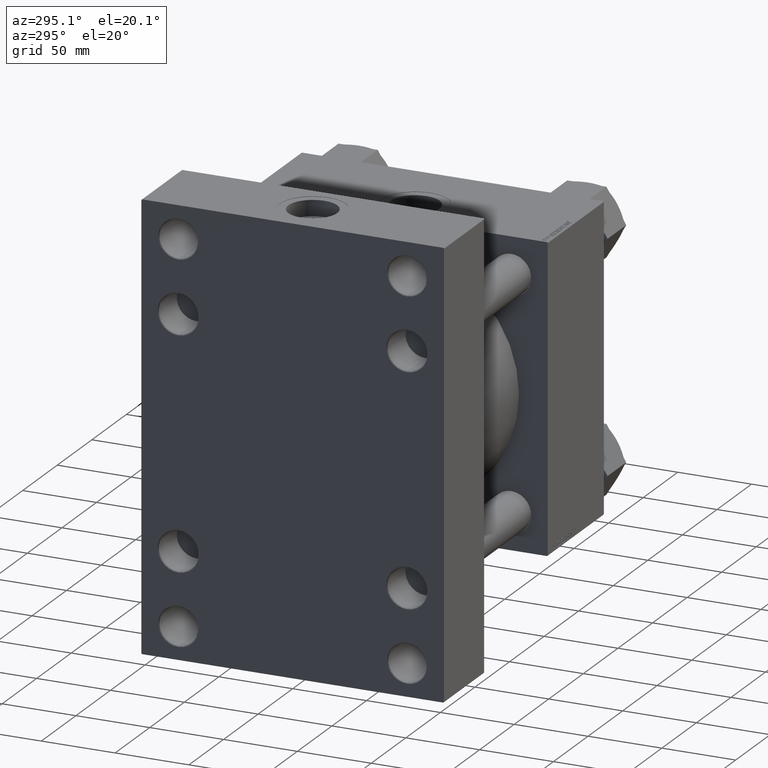
[diagram: clean part render]
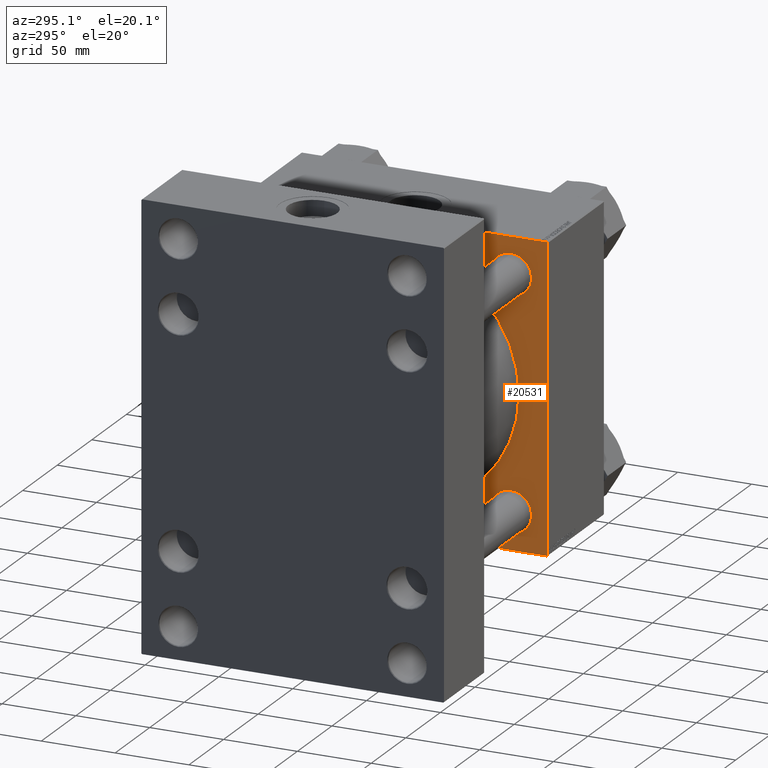
[diagram: same view with one face highlighted and labeled with its STEP entity id]
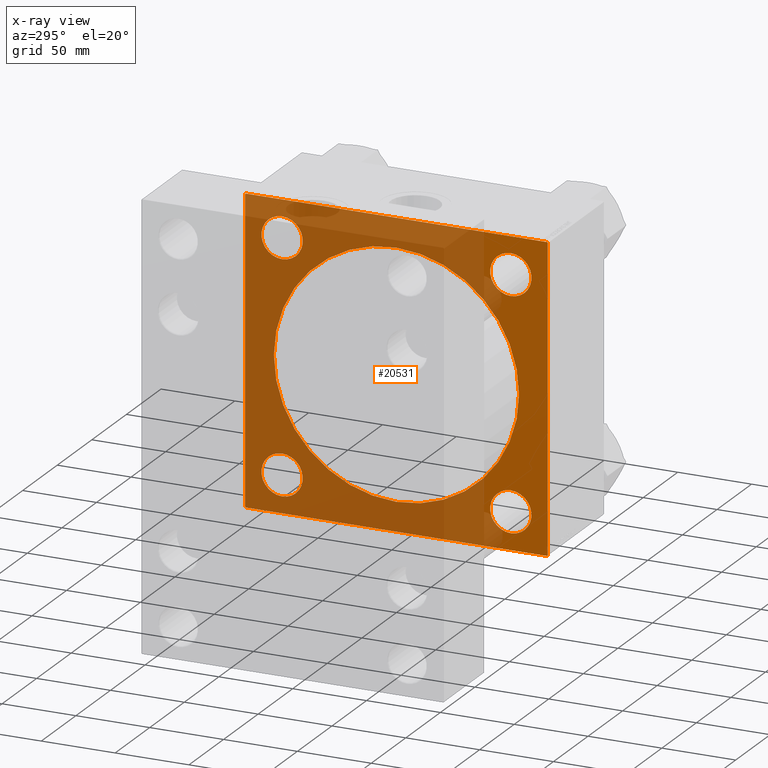
[diagram: x-ray of the same camera — body ghosted, the highlighted face saturated]
A machine part, auxiliary view. The second image highlights one B-rep face of the part: STEP entity #20531.
The next image is the same camera in x-ray: the body ghosted, the highlighted face saturated — about 70% of this face is hidden behind the body in this view.
In plain terms, the highlighted planar face has unit normal (-1, 0, 0).
Its self-contained STEP definition (entity closure, byte-faithful):
#37 = EDGE_CURVE ( 'NONE', #4458, #321, #26286, .T. ) ;
#72 = CARTESIAN_POINT ( 'NONE',  ( 150.0000000000000000, 77.44999999999998863, 91.44999999999997442 ) ) ;
#115 = FACE_BOUND ( 'NONE', #27357, .T. ) ;
#321 = VERTEX_POINT ( 'NONE', #30054 ) ;
#355 = FACE_OUTER_BOUND ( 'NONE', #49122, .T. ) ;
#366 = CARTESIAN_POINT ( 'NONE',  ( 150.0000000000000000, 7.562483218957820855E-15, -83.00000000000000000 ) ) ;
#601 = FACE_BOUND ( 'NONE', #30856, .T. ) ;
#1073 = CARTESIAN_POINT ( 'NONE',  ( 150.0000000000000000, 0.000000000000000000, 0.000000000000000000 ) ) ;
#1248 = EDGE_LOOP ( 'NONE', ( #27716, #20190 ) ) ;
#1387 = EDGE_CURVE ( 'NONE', #8921, #35517, #4411, .T. ) ;
#1479 = AXIS2_PLACEMENT_3D ( 'NONE', #31712, #46541, #31213 ) ;
#1800 = LINE ( 'NONE', #5380, #43765 ) ;
#3688 = CARTESIAN_POINT ( 'NONE',  ( 150.0000000000000000, 102.5000000000000142, 102.5000000000000142 ) ) ;
#4204 = FACE_BOUND ( 'NONE', #40764, .T. ) ;
#4411 = CIRCLE ( 'NONE', #8482, 13.99999999999995737 ) ;
#4458 = VERTEX_POINT ( 'NONE', #33375 ) ;
#5380 = CARTESIAN_POINT ( 'NONE',  ( 150.0000000000000000, 102.2499999999999716, -102.2499999999999716 ) ) ;
#6127 = ORIENTED_EDGE ( 'NONE', *, *, #18208, .T. ) ;
#6522 = DIRECTION ( 'NONE',  ( 1.000000000000000000, -0.000000000000000000, -0.000000000000000000 ) ) ;
#7233 = CIRCLE ( 'NONE', #1479, 13.99999999999995737 ) ;
#7708 = AXIS2_PLACEMENT_3D ( 'NONE', #1073, #31521, #12573 ) ;
#7991 = ORIENTED_EDGE ( 'NONE', *, *, #8722, .T. ) ;
#8248 = EDGE_CURVE ( 'NONE', #23577, #4458, #1800, .T. ) ;
#8482 = AXIS2_PLACEMENT_3D ( 'NONE', #44818, #6522, #18248 ) ;
#8722 = EDGE_CURVE ( 'NONE', #12652, #22179, #16093, .T. ) ;
#8921 = VERTEX_POINT ( 'NONE', #72 ) ;
#9116 = DIRECTION ( 'NONE',  ( 0.000000000000000000, 0.7071067811865474617, -0.7071067811865474617 ) ) ;
#9640 = CARTESIAN_POINT ( 'NONE',  ( 150.0000000000000000, 77.44999999999998863, -77.45000000000001705 ) ) ;
#10175 = CIRCLE ( 'NONE', #29762, 83.00000000000000000 ) ;
#10552 = ORIENTED_EDGE ( 'NONE', *, *, #21192, .T. ) ;
#11520 = EDGE_CURVE ( 'NONE', #13204, #18245, #29919, .T. ) ;
#12573 = DIRECTION ( 'NONE',  ( 0.000000000000000000, 0.000000000000000000, 1.000000000000000000 ) ) ;
#12652 = VERTEX_POINT ( 'NONE', #31597 ) ;
#12660 = ORIENTED_EDGE ( 'NONE', *, *, #1387, .T. ) ;
#12741 = ORIENTED_EDGE ( 'NONE', *, *, #17437, .F. ) ;
#12799 = EDGE_CURVE ( 'NONE', #32417, #49542, #15300, .T. ) ;
#12847 = VERTEX_POINT ( 'NONE', #366 ) ;
#13204 = VERTEX_POINT ( 'NONE', #16554 ) ;
#13981 = DIRECTION ( 'NONE',  ( 0.000000000000000000, 0.000000000000000000, 1.000000000000000000 ) ) ;
#13994 = CARTESIAN_POINT ( 'NONE',  ( 150.0000000000000000, 102.5000000000000142, 101.9999999999999574 ) ) ;
#14140 = ORIENTED_EDGE ( 'NONE', *, *, #17012, .T. ) ;
#14171 = VECTOR ( 'NONE', #18621, 1000.000000000000000 ) ;
#14254 = DIRECTION ( 'NONE',  ( 0.000000000000000000, 0.000000000000000000, 1.000000000000000000 ) ) ;
#14450 = VERTEX_POINT ( 'NONE', #43723 ) ;
#14493 = CARTESIAN_POINT ( 'NONE',  ( 150.0000000000000000, -77.44999999999996021, -77.45000000000003126 ) ) ;
#14681 = DIRECTION ( 'NONE',  ( 0.000000000000000000, -1.000000000000000000, -1.353930517835556973E-16 ) ) ;
#14810 = VERTEX_POINT ( 'NONE', #28827 ) ;
#14992 = DIRECTION ( 'NONE',  ( 1.000000000000000000, -0.000000000000000000, -0.000000000000000000 ) ) ;
#15137 = ORIENTED_EDGE ( 'NONE', *, *, #29634, .T. ) ;
#15222 = AXIS2_PLACEMENT_3D ( 'NONE', #38684, #23086, #13981 ) ;
#15300 = CIRCLE ( 'NONE', #50393, 13.99999999999995737 ) ;
#15316 = DIRECTION ( 'NONE',  ( 0.000000000000000000, 0.000000000000000000, -1.000000000000000000 ) ) ;
#16093 = CIRCLE ( 'NONE', #45458, 13.99999999999995737 ) ;
#16554 = CARTESIAN_POINT ( 'NONE',  ( 150.0000000000000000, -77.44999999999996021, 63.45000000000007390 ) ) ;
#16558 = EDGE_CURVE ( 'NONE', #46659, #23577, #28902, .T. ) ;
#16723 = EDGE_CURVE ( 'NONE', #321, #14450, #22764, .T. ) ;
#16857 = DIRECTION ( 'NONE',  ( -0.000000000000000000, -0.7071067811865474617, -0.7071067811865474617 ) ) ;
#16888 = CARTESIAN_POINT ( 'NONE',  ( 150.0000000000000000, 102.5000000000000142, 102.5000000000000142 ) ) ;
#17012 = EDGE_CURVE ( 'NONE', #14810, #46659, #17291, .T. ) ;
#17264 = ORIENTED_EDGE ( 'NONE', *, *, #48697, .T. ) ;
#17291 = LINE ( 'NONE', #25208, #41145 ) ;
#17437 = EDGE_CURVE ( 'NONE', #14810, #49723, #38184, .T. ) ;
#17577 = EDGE_CURVE ( 'NONE', #24842, #14450, #31998, .T. ) ;
#17923 = CIRCLE ( 'NONE', #30943, 13.99999999999995737 ) ;
#17955 = ORIENTED_EDGE ( 'NONE', *, *, #37, .T. ) ;
#17986 = EDGE_CURVE ( 'NONE', #49542, #32417, #47672, .T. ) ;
#18080 = CARTESIAN_POINT ( 'NONE',  ( 150.0000000000000000, 77.44999999999998863, 77.45000000000001705 ) ) ;
#18208 = EDGE_CURVE ( 'NONE', #24842, #49723, #21834, .T. ) ;
#18226 = CARTESIAN_POINT ( 'NONE',  ( 150.0000000000000000, -77.44999999999996021, -91.44999999999998863 ) ) ;
#18245 = VERTEX_POINT ( 'NONE', #18776 ) ;
#18248 = DIRECTION ( 'NONE',  ( 0.000000000000000000, 0.000000000000000000, 1.000000000000000000 ) ) ;
#18621 = DIRECTION ( 'NONE',  ( 0.000000000000000000, -1.000000000000000000, -1.353930517835556727E-16 ) ) ;
#18776 = CARTESIAN_POINT ( 'NONE',  ( 150.0000000000000000, -77.44999999999996021, 91.44999999999998863 ) ) ;
#19077 = DIRECTION ( 'NONE',  ( 0.000000000000000000, 0.000000000000000000, 1.000000000000000000 ) ) ;
#19145 = DIRECTION ( 'NONE',  ( 1.000000000000000000, 0.000000000000000000, 0.000000000000000000 ) ) ;
#19150 = ORIENTED_EDGE ( 'NONE', *, *, #11520, .T. ) ;
#20190 = ORIENTED_EDGE ( 'NONE', *, *, #12799, .T. ) ;
#20251 = DIRECTION ( 'NONE',  ( 0.000000000000000000, -1.353930517835556727E-16, -1.000000000000000000 ) ) ;
#20531 = ADVANCED_FACE ( 'NONE', ( #601, #4204, #115, #35346, #47575, #355 ), #31773, .T. ) ;
#20758 = AXIS2_PLACEMENT_3D ( 'NONE', #14493, #14992, #19077 ) ;
#21192 = EDGE_CURVE ( 'NONE', #49910, #12847, #10175, .T. ) ;
#21307 = EDGE_CURVE ( 'NONE', #12847, #49910, #43606, .T. ) ;
#21573 = AXIS2_PLACEMENT_3D ( 'NONE', #44642, #30339, #45919 ) ;
#21834 = LINE ( 'NONE', #29759, #25674 ) ;
#22179 = VERTEX_POINT ( 'NONE', #36078 ) ;
#22764 = LINE ( 'NONE', #38365, #30535 ) ;
#23086 = DIRECTION ( 'NONE',  ( 1.000000000000000000, -0.000000000000000000, -0.000000000000000000 ) ) ;
#23224 = CARTESIAN_POINT ( 'NONE',  ( 150.0000000000000000, -77.44999999999996021, -63.45000000000007390 ) ) ;
#23262 = DIRECTION ( 'NONE',  ( 0.000000000000000000, -0.7071067811865574537, 0.7071067811865376918 ) ) ;
#23577 = VERTEX_POINT ( 'NONE', #29470 ) ;
#24577 = CARTESIAN_POINT ( 'NONE',  ( 150.0000000000000000, -102.4999999999999716, 102.4999999999999858 ) ) ;
#24842 = VERTEX_POINT ( 'NONE', #45969 ) ;
#25208 = CARTESIAN_POINT ( 'NONE',  ( 150.0000000000000000, 102.2499999999999716, 102.2499999999999716 ) ) ;
#25584 = DIRECTION ( 'NONE',  ( 0.000000000000000000, 0.000000000000000000, -1.000000000000000000 ) ) ;
#25674 = VECTOR ( 'NONE', #41769, 999.9999999999998863 ) ;
#25756 = ORIENTED_EDGE ( 'NONE', *, *, #17577, .F. ) ;
#26286 = LINE ( 'NONE', #38032, #14171 ) ;
#27357 = EDGE_LOOP ( 'NONE', ( #7991, #17264 ) ) ;
#27716 = ORIENTED_EDGE ( 'NONE', *, *, #17986, .T. ) ;
#28109 = CARTESIAN_POINT ( 'NONE',  ( 150.0000000000000000, 77.44999999999998863, 63.45000000000005969 ) ) ;
#28548 = DIRECTION ( 'NONE',  ( 0.000000000000000000, 0.000000000000000000, 1.000000000000000000 ) ) ;
#28827 = CARTESIAN_POINT ( 'NONE',  ( 150.0000000000000000, 101.9999999999999574, 102.5000000000000142 ) ) ;
#28902 = LINE ( 'NONE', #16888, #35453 ) ;
#29470 = CARTESIAN_POINT ( 'NONE',  ( 150.0000000000000000, 102.5000000000000142, -101.9999999999999574 ) ) ;
#29634 = EDGE_CURVE ( 'NONE', #18245, #13204, #7233, .T. ) ;
#29759 = CARTESIAN_POINT ( 'NONE',  ( 150.0000000000000000, -102.2499999999985647, 102.2500000000013927 ) ) ;
#29762 = AXIS2_PLACEMENT_3D ( 'NONE', #35480, #19145, #15316 ) ;
#29766 = CARTESIAN_POINT ( 'NONE',  ( 150.0000000000000000, -77.44999999999996021, -77.45000000000003126 ) ) ;
#29919 = CIRCLE ( 'NONE', #15222, 13.99999999999995737 ) ;
#30041 = ORIENTED_EDGE ( 'NONE', *, *, #16558, .T. ) ;
#30054 = CARTESIAN_POINT ( 'NONE',  ( 150.0000000000000000, -101.9999999999999858, -102.5000000000000284 ) ) ;
#30339 = DIRECTION ( 'NONE',  ( 1.000000000000000000, 0.000000000000000000, 0.000000000000000000 ) ) ;
#30535 = VECTOR ( 'NONE', #23262, 999.9999999999998863 ) ;
#30590 = DIRECTION ( 'NONE',  ( 1.000000000000000000, -0.000000000000000000, -0.000000000000000000 ) ) ;
#30856 = EDGE_LOOP ( 'NONE', ( #15137, #19150 ) ) ;
#30943 = AXIS2_PLACEMENT_3D ( 'NONE', #9640, #40045, #28548 ) ;
#31213 = DIRECTION ( 'NONE',  ( 0.000000000000000000, 0.000000000000000000, 1.000000000000000000 ) ) ;
#31420 = VECTOR ( 'NONE', #20251, 1000.000000000000000 ) ;
#31521 = DIRECTION ( 'NONE',  ( -1.000000000000000000, 0.000000000000000000, 0.000000000000000000 ) ) ;
#31597 = CARTESIAN_POINT ( 'NONE',  ( 150.0000000000000000, 77.44999999999998863, -63.45000000000005969 ) ) ;
#31712 = CARTESIAN_POINT ( 'NONE',  ( 150.0000000000000000, -77.44999999999996021, 77.45000000000003126 ) ) ;
#31773 = PLANE ( 'NONE',  #7708 ) ;
#31844 = CARTESIAN_POINT ( 'NONE',  ( 150.0000000000000000, -2.602085213965210642E-15, 83.00000000000000000 ) ) ;
#31998 = LINE ( 'NONE', #24577, #31420 ) ;
#32417 = VERTEX_POINT ( 'NONE', #18226 ) ;
#33375 = CARTESIAN_POINT ( 'NONE',  ( 150.0000000000000000, 101.9999999999999574, -102.5000000000000142 ) ) ;
#33660 = DIRECTION ( 'NONE',  ( 1.000000000000000000, -0.000000000000000000, -0.000000000000000000 ) ) ;
#33850 = DIRECTION ( 'NONE',  ( 0.000000000000000000, 0.000000000000000000, 1.000000000000000000 ) ) ;
#34188 = CIRCLE ( 'NONE', #34993, 13.99999999999995737 ) ;
#34581 = ORIENTED_EDGE ( 'NONE', *, *, #21307, .T. ) ;
#34993 = AXIS2_PLACEMENT_3D ( 'NONE', #18080, #33660, #49506 ) ;
#35025 = ORIENTED_EDGE ( 'NONE', *, *, #46696, .T. ) ;
#35346 = FACE_BOUND ( 'NONE', #1248, .T. ) ;
#35453 = VECTOR ( 'NONE', #25584, 1000.000000000000000 ) ;
#35480 = CARTESIAN_POINT ( 'NONE',  ( 150.0000000000000000, -2.602085213965210642E-15, 0.000000000000000000 ) ) ;
#35517 = VERTEX_POINT ( 'NONE', #28109 ) ;
#36078 = CARTESIAN_POINT ( 'NONE',  ( 150.0000000000000000, 77.44999999999998863, -91.44999999999997442 ) ) ;
#38032 = CARTESIAN_POINT ( 'NONE',  ( 150.0000000000000000, 102.5000000000000142, -102.5000000000000142 ) ) ;
#38184 = LINE ( 'NONE', #3688, #42821 ) ;
#38365 = CARTESIAN_POINT ( 'NONE',  ( 150.0000000000000000, -102.2499999999985931, -102.2500000000014353 ) ) ;
#38514 = CARTESIAN_POINT ( 'NONE',  ( 150.0000000000000000, -101.9999999999999574, 102.4999999999999858 ) ) ;
#38684 = CARTESIAN_POINT ( 'NONE',  ( 150.0000000000000000, -77.44999999999996021, 77.45000000000003126 ) ) ;
#40045 = DIRECTION ( 'NONE',  ( 1.000000000000000000, -0.000000000000000000, -0.000000000000000000 ) ) ;
#40764 = EDGE_LOOP ( 'NONE', ( #12660, #35025 ) ) ;
#41145 = VECTOR ( 'NONE', #9116, 1000.000000000000114 ) ;
#41522 = DIRECTION ( 'NONE',  ( 1.000000000000000000, -0.000000000000000000, -0.000000000000000000 ) ) ;
#41769 = DIRECTION ( 'NONE',  ( -0.000000000000000000, 0.7071067811865574537, 0.7071067811865376918 ) ) ;
#42821 = VECTOR ( 'NONE', #14681, 1000.000000000000000 ) ;
#43606 = CIRCLE ( 'NONE', #21573, 83.00000000000000000 ) ;
#43723 = CARTESIAN_POINT ( 'NONE',  ( 150.0000000000000000, -102.5000000000000000, -102.0000000000000284 ) ) ;
#43765 = VECTOR ( 'NONE', #16857, 1000.000000000000114 ) ;
#44553 = EDGE_LOOP ( 'NONE', ( #10552, #34581 ) ) ;
#44642 = CARTESIAN_POINT ( 'NONE',  ( 150.0000000000000000, -2.602085213965210642E-15, 0.000000000000000000 ) ) ;
#44818 = CARTESIAN_POINT ( 'NONE',  ( 150.0000000000000000, 77.44999999999998863, 77.45000000000001705 ) ) ;
#45458 = AXIS2_PLACEMENT_3D ( 'NONE', #49257, #30590, #14254 ) ;
#45919 = DIRECTION ( 'NONE',  ( 0.000000000000000000, 0.000000000000000000, -1.000000000000000000 ) ) ;
#45969 = CARTESIAN_POINT ( 'NONE',  ( 150.0000000000000000, -102.4999999999999716, 101.9999999999999858 ) ) ;
#46541 = DIRECTION ( 'NONE',  ( 1.000000000000000000, -0.000000000000000000, -0.000000000000000000 ) ) ;
#46659 = VERTEX_POINT ( 'NONE', #13994 ) ;
#46696 = EDGE_CURVE ( 'NONE', #35517, #8921, #34188, .T. ) ;
#47575 = FACE_BOUND ( 'NONE', #44553, .T. ) ;
#47672 = CIRCLE ( 'NONE', #20758, 13.99999999999995737 ) ;
#48697 = EDGE_CURVE ( 'NONE', #22179, #12652, #17923, .T. ) ;
#49122 = EDGE_LOOP ( 'NONE', ( #17955, #50089, #25756, #6127, #12741, #14140, #30041, #49887 ) ) ;
#49257 = CARTESIAN_POINT ( 'NONE',  ( 150.0000000000000000, 77.44999999999998863, -77.45000000000001705 ) ) ;
#49506 = DIRECTION ( 'NONE',  ( 0.000000000000000000, 0.000000000000000000, 1.000000000000000000 ) ) ;
#49542 = VERTEX_POINT ( 'NONE', #23224 ) ;
#49723 = VERTEX_POINT ( 'NONE', #38514 ) ;
#49887 = ORIENTED_EDGE ( 'NONE', *, *, #8248, .T. ) ;
#49910 = VERTEX_POINT ( 'NONE', #31844 ) ;
#50089 = ORIENTED_EDGE ( 'NONE', *, *, #16723, .T. ) ;
#50393 = AXIS2_PLACEMENT_3D ( 'NONE', #29766, #41522, #33850 ) ;